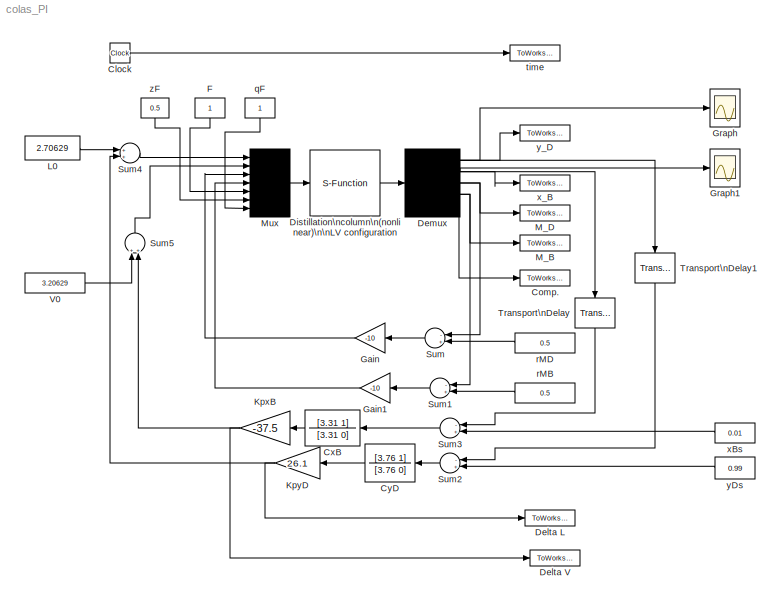
MODEL colas_PI
KIND model
CONFIG AbsTol = 1e-6
CONFIG FixedStep = auto
CONFIG MaxStep = 5
CONFIG RelTol = 1e-6
CONFIG Solver = ode15s
CONFIG StartTime = 0.0
CONFIG StopTime = 200
BLOCK [TransferFcn]  CyD
  Denominator = [3.76 0]
  Numerator = [3.76 1]
BLOCK [Clock] Clock
BLOCK [ToWorkspace] Comp.
  Buffer = 1200
  Decimation = 1
  SampleTime = 0
  VariableName = Comp
BLOCK [TransferFcn] CxB
  Denominator = [3.31 0]
  Numerator = [3.31 1]
BLOCK [ToWorkspace] Delta L
  Buffer = 1200
  Decimation = 1
  SampleTime = 0
  VariableName = u1
BLOCK [ToWorkspace] Delta V
  Buffer = 1200
  Decimation = 1
  SampleTime = 0
  VariableName = u2
BLOCK [Demux] Demux
  Outputs = [1,1,1,1,41]
  Ports = [1, 5, 0, 0, 0]
BLOCK [S-Function] Distillation\ncolumn\n(nonlinear)\n\nLV configuration
  FunctionName = colas
  Ports = [1, 1, 0, 0, 0]
BLOCK [Constant] F
  Value = 1
BLOCK [Gain] Gain
  Gain = -10
BLOCK [Gain] Gain1
  Gain = -10
BLOCK [Scope] Graph
  Decimation = 1
  Floating = off
  Grid = on
  LimitMaxRows = on
  MaxRows = 5000
  Ports = [1, 0, 0, 0, 0]
  SampleInput = off
  SampleTime = 0
  SaveName = ScopeData
  SaveToWorkspace = off
  TickLabels = on
  TimeRange = 20
  YMax = 1
  YMin = 0.985
  ZoomMode = on
BLOCK [Scope] Graph1
  Decimation = 1
  Floating = off
  Grid = on
  LimitMaxRows = on
  MaxRows = 5000
  Ports = [1, 0, 0, 0, 0]
  SampleInput = off
  SampleTime = 0
  SaveName = ScopeData
  SaveToWorkspace = off
  TickLabels = on
  TimeRange = 20
  YMax = 0.02
  YMin = 0
  ZoomMode = on
BLOCK [Gain] KpxB
  Gain = -37.5
BLOCK [Gain] KpyD
  Gain = 26.1
BLOCK [Constant] L0
  Value = 2.70629
BLOCK [ToWorkspace] M_B
  Buffer = 1200
  Decimation = 1
  SampleTime = 0
  VariableName = y4
BLOCK [ToWorkspace] M_D
  Buffer = 1200
  Decimation = 1
  SampleTime = 0
  VariableName = y3
BLOCK [Mux] Mux
  Inputs = 7
  Ports = [7, 1, 0, 0, 0]
BLOCK [Sum] Sum
  Inputs = -+
  Ports = [2, 1, 0, 0, 0]
BLOCK [Sum] Sum1
  Inputs = -+
  Ports = [2, 1, 0, 0, 0]
BLOCK [Sum] Sum2
  Inputs = -+
  Ports = [2, 1, 0, 0, 0]
BLOCK [Sum] Sum3
  Inputs = -+
  Ports = [2, 1, 0, 0, 0]
BLOCK [Sum] Sum4
  Inputs = ++
  Ports = [2, 1, 0, 0, 0]
BLOCK [Sum] Sum5
  Inputs = ++
  Ports = [2, 1, 0, 0, 0]
BLOCK [TransportDelay] Transport\nDelay
  BufferSize = 1024
  DelayTime = 1
  InitialInput = 0.01
BLOCK [TransportDelay] Transport\nDelay1
  BufferSize = 1024
  DelayTime = 1
  InitialInput = 0.99
BLOCK [Constant] V0
  Value = 3.20629
BLOCK [Constant] qF
  Value = 1
BLOCK [Constant] rMB
  Value = 0.5
BLOCK [Constant] rMD
  Value = 0.5
BLOCK [ToWorkspace] time
  Buffer = 1000
  Decimation = 1
  SampleTime = 0
  VariableName = t
BLOCK [Constant] xBs
  Value = 0.01
BLOCK [ToWorkspace] x_B
  Buffer = 1200
  Decimation = 1
  SampleTime = 0
  VariableName = y2
BLOCK [Constant] yDs
  Value = 0.99
BLOCK [ToWorkspace] y_D
  Buffer = 1200
  Decimation = 1
  SampleTime = 0
  VariableName = y1
BLOCK [Constant] zF
  Value = 0.5
LINE  CyD:1 -> KpyD:1
LINE Clock:1 -> time:1
LINE CxB:1 -> KpxB:1
NET Demux:1 -> Graph:1, Transport\nDelay1:1, y_D:1
NET Demux:2 -> Graph1:1, Transport\nDelay:1, x_B:1
NET Demux:3 -> M_D:1, Sum:1
NET Demux:4 -> M_B:1, Sum1:1
LINE Demux:5 -> Comp.:1
LINE Distillation\ncolumn\n(nonlinear)\n\nLV configuration:1 -> Demux:1
LINE F:1 -> Mux:5
LINE Gain1:1 -> Mux:4
LINE Gain:1 -> Mux:3
NET KpxB:1 -> Delta V:1, Sum5:2
NET KpyD:1 -> Delta L:1, Sum4:2
LINE L0:1 -> Sum4:1
LINE Mux:1 -> Distillation\ncolumn\n(nonlinear)\n\nLV configuration:1
LINE Sum1:1 -> Gain1:1
LINE Sum2:1 ->  CyD:1
LINE Sum3:1 -> CxB:1
LINE Sum4:1 -> Mux:1
LINE Sum5:1 -> Mux:2
LINE Sum:1 -> Gain:1
LINE Transport\nDelay1:1 -> Sum2:1
LINE Transport\nDelay:1 -> Sum3:1
LINE V0:1 -> Sum5:1
LINE qF:1 -> Mux:7
LINE rMB:1 -> Sum1:2
LINE rMD:1 -> Sum:2
LINE xBs:1 -> Sum3:2
LINE yDs:1 -> Sum2:2
LINE zF:1 -> Mux:6
note: NET lines group one-source signal fan-out (src -> all destinations, sorted); 1:1 wires keep LINE
